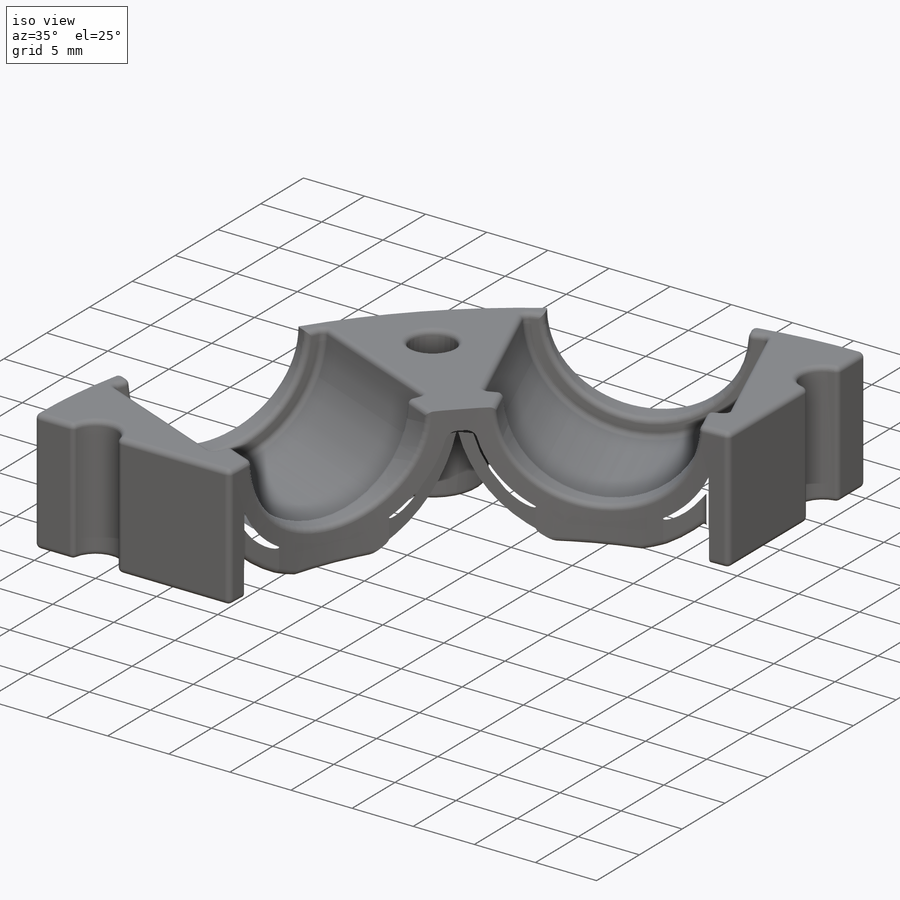
[diagram: iso view]
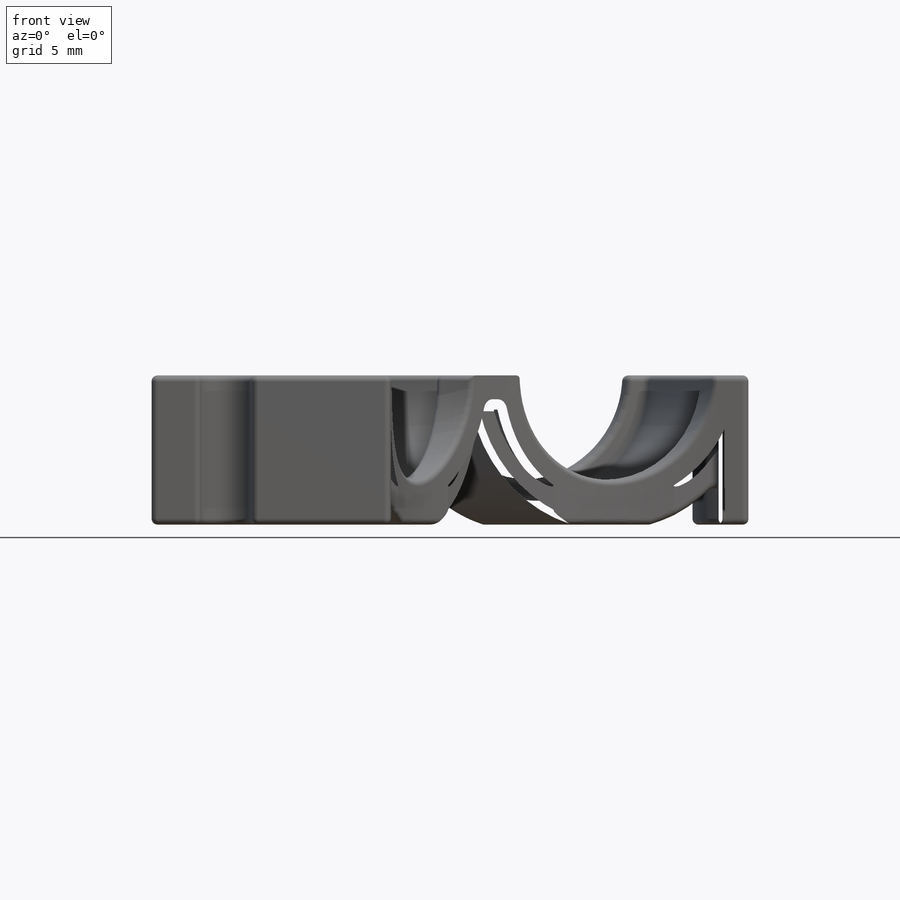
[diagram: front view]
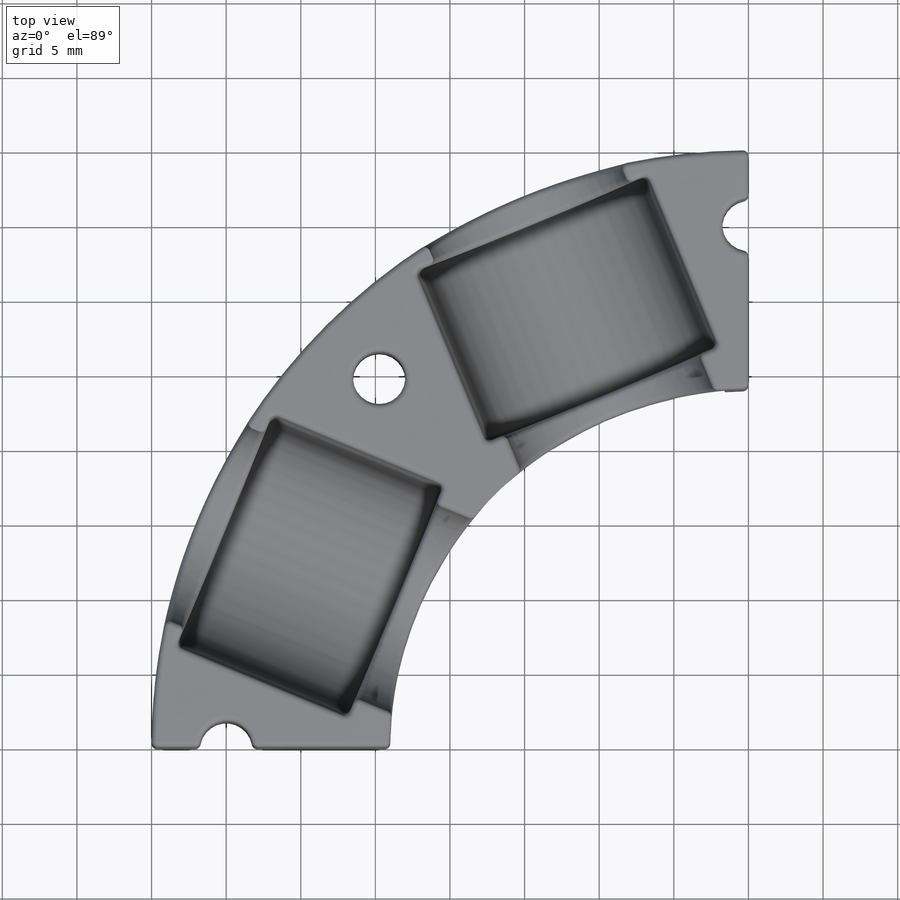
[diagram: top view]
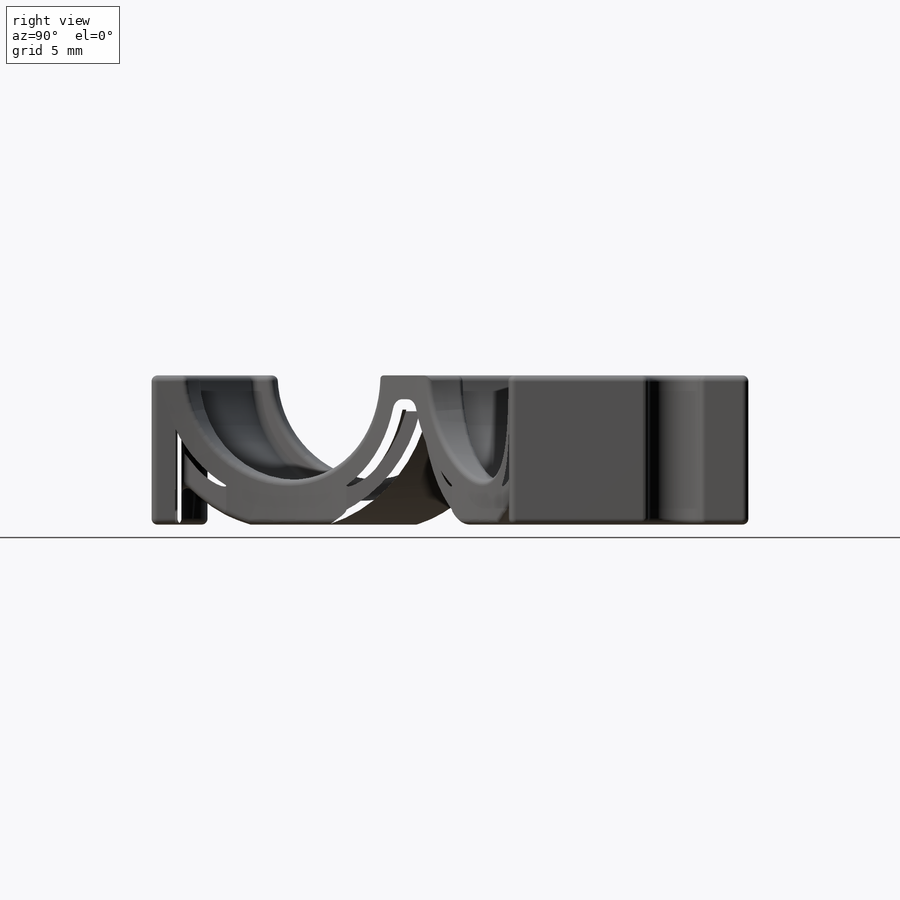
[diagram: right view]
SOLIDWORKS PART (.sldprt)
format: sldprt  version: not decoded by parser v0  size: 1,271,808 bytes
history: native  units: mm
features: plane x3, sketch x3, fillet x3, pattern_circular x2, material x1, revolve x1, cut_revolve x1, cut_extrude x1, shell x1 (+9 scaffold rows collapsed)
feature tree (25):
  scaffold x9  (default folders/planes/origin — collapsed)
  material  "Matériau <non spécifié>"
  plane  "Plan de face"
  plane  "Plan de dessus"
  plane  "Plan de droite"
  sketch  "EsqBaseSupport"  dims[D1=16.0mm D2=10.0mm D3=40.0mm]
  revolve  "BaseSupport"  Angle=90deg
  sketch  "EsqEmplacement"  dims[c1.D1=~28.505881mm c2.D1=30.0deg c2.D2=12.4mm c2.D3=7.0mm c2.D4=8.4mm c2.D5=28.0mm c2.D6=20.0mm c3.D1=28.0mm c3.D5=~55.374631mm c4.D5=22.5deg c4.D1=38.0mm]
  cut_revolve  "Emplacement"  Angle=360deg
  pattern_circular  "EnsembleEmplacement"  Count=2 Angle=45deg
  sketch  "EsqTrouVis"  dims[c1.D1=3.5mm c1.D3=3.5mm c1.D2=~32.990705mm c2.D2=~58.137659deg c3.D2=~32.990705mm c4.D2=0.0deg c4.D3=35.0mm]
  cut_extrude  "TrouVis"  [1 undecoded]
  pattern_circular  "EnsembleTrouVis"  Count=3 Angle=90deg
  shell  "Coque"  Thickness=2mm
  fillet  "CongéPhase 1"  Radius=0.4mm
  fillet  "CongéPhase 2"  Radius=0.4mm
  fillet  "CongéPhase 3"  Radius=0.4mm
decode coverage: 11 of 12 modeling features carry decoded parameters
note: ~ marks probable driven/reference dimensions
note: 1 parameter value undecoded
note: suppression state not decoded; provenance and decode notes live in map.json
